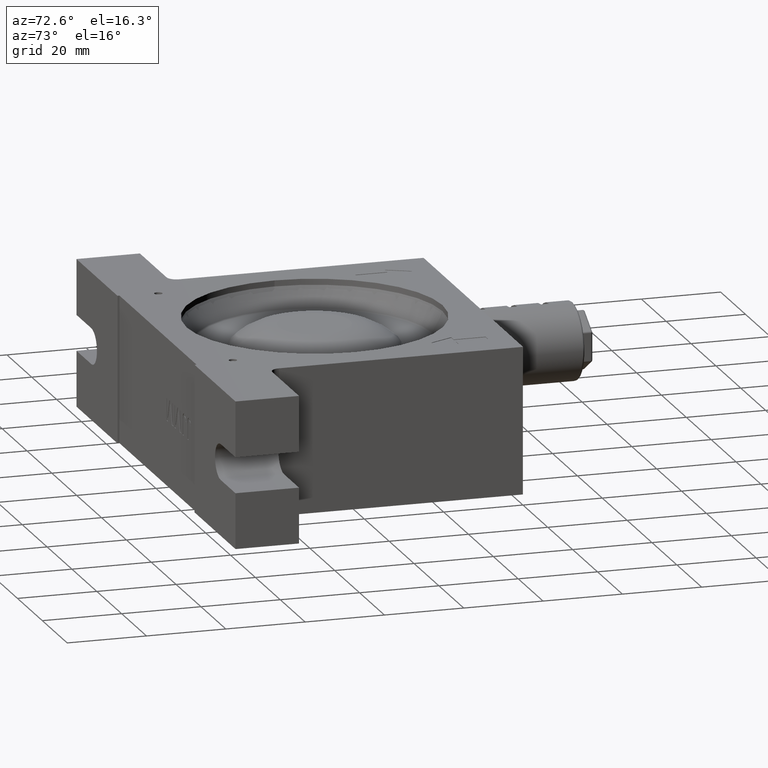
[diagram: clean part render]
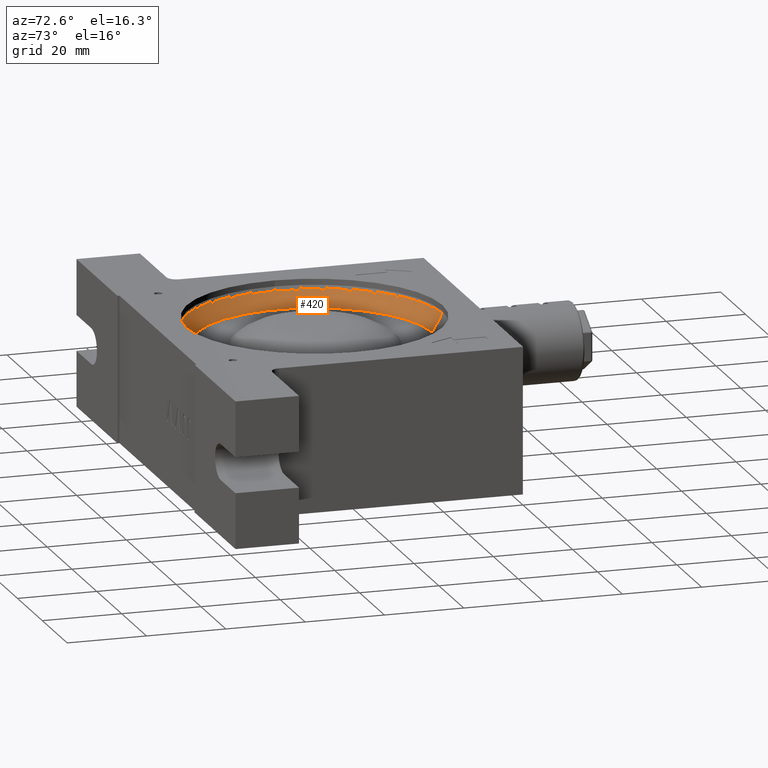
[diagram: same view with one face highlighted and labeled with its STEP entity id]
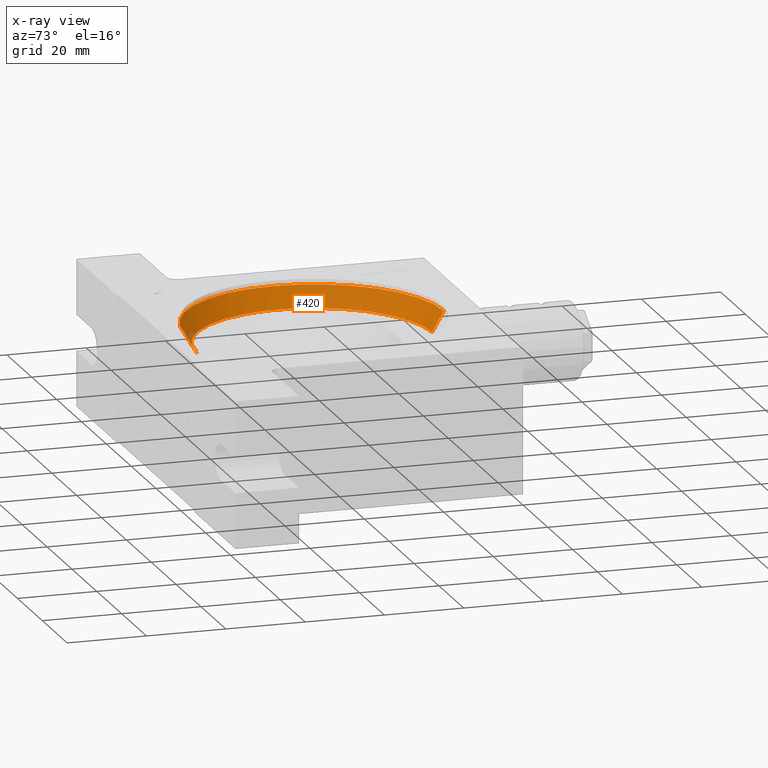
[diagram: x-ray of the same camera — body ghosted, the highlighted face saturated]
A machine part, auxiliary view. The second image highlights one B-rep face of the part: STEP entity #420.
The next image is the same camera in x-ray: the body ghosted, the highlighted face saturated — about 1% of this face is hidden behind the body in this view.
In plain terms, the highlighted conical surface has half-angle 30 deg.
Its self-contained STEP definition (entity closure, byte-faithful):
#92 = DIRECTION ( 'NONE',  ( 9.071690638293561100E-017, 0.4999999999999996100, 0.8660254037844389300 ) ) ;
#330 = VECTOR ( 'NONE', #3072, 1000.000000000000000 ) ;
#420 = ADVANCED_FACE ( 'NONE', ( #4239 ), #4324, .F. ) ;
#736 = CARTESIAN_POINT ( 'NONE',  ( -3.828213212977525200E-017, -5.449498274509549800E-016, 11.90000000000000000 ) ) ;
#805 = CARTESIAN_POINT ( 'NONE',  ( -8.566396483472342000E-015, -29.50179491924310000, 11.65000000000000400 ) ) ;
#1237 = CARTESIAN_POINT ( 'NONE',  ( 4.872602984356873100E-015, 29.50179491924310000, 11.64999999999999700 ) ) ;
#1472 = CARTESIAN_POINT ( 'NONE',  ( -4.043281371009969600E-017, -5.755649862965150000E-016, 11.65000000000000000 ) ) ;
#1951 = DIRECTION ( 'NONE',  ( 1.665334536937734800E-016, 1.000000000000000000, -1.064553872671284000E-016 ) ) ;
#1989 = CARTESIAN_POINT ( 'NONE',  ( 5.591772108843610700E-018, 7.959941299845729000E-017, 17.00000000000000000 ) ) ;
#2014 = DIRECTION ( 'NONE',  ( 8.602726321297810600E-018, 1.224606353822375800E-016, 1.000000000000000000 ) ) ;
#2448 = DIRECTION ( 'NONE',  ( 1.665334536937735100E-016, 1.000000000000000000, -1.170286530132981600E-016 ) ) ;
#2461 = EDGE_CURVE ( 'NONE', #7118, #6048, #5087, .T. ) ;
#2579 = LINE ( 'NONE', #1237, #5453 ) ;
#2817 = CARTESIAN_POINT ( 'NONE',  ( -9.413036251406219000E-015, -32.59061885940759900, 17.00000000000000400 ) ) ;
#3072 = DIRECTION ( 'NONE',  ( -1.370488872682053100E-016, -0.4999999999999993300, 0.8660254037844390400 ) ) ;
#3256 = DIRECTION ( 'NONE',  ( 8.602726321297810600E-018, 1.224606353822375800E-016, 1.000000000000000000 ) ) ;
#3632 = DIRECTION ( 'NONE',  ( 1.665334536937734800E-016, 1.000000000000000000, -1.176012158396031100E-016 ) ) ;
#4239 = FACE_OUTER_BOUND ( 'NONE', #7429, .T. ) ;
#4311 = AXIS2_PLACEMENT_3D ( 'NONE', #736, #5881, #2448 ) ;
#4324 = CONICAL_SURFACE ( 'NONE', #5189, 29.50179491924310000, 0.5235987755982982600 ) ;
#4374 = ORIENTED_EDGE ( 'NONE', *, *, #5831, .F. ) ;
#4519 = CARTESIAN_POINT ( 'NONE',  ( -9.009497670428390700E-015, -29.64613248654050200, 11.90000000000000400 ) ) ;
#4707 = ORIENTED_EDGE ( 'NONE', *, *, #6547, .T. ) ;
#4738 = AXIS2_PLACEMENT_3D ( 'NONE', #1989, #2014, #1951 ) ;
#4900 = LINE ( 'NONE', #805, #330 ) ;
#4922 = CIRCLE ( 'NONE', #4738, 32.59061885940759900 ) ;
#4956 = CARTESIAN_POINT ( 'NONE',  ( 5.433020088783418800E-015, 32.59061885940759900, 16.99999999999999600 ) ) ;
#5087 = CIRCLE ( 'NONE', #4311, 29.64613248654050200 ) ;
#5097 = EDGE_CURVE ( 'NONE', #6048, #5925, #2579, .T. ) ;
#5189 = AXIS2_PLACEMENT_3D ( 'NONE', #1472, #3256, #3632 ) ;
#5453 = VECTOR ( 'NONE', #92, 999.9999999999998900 ) ;
#5504 = CARTESIAN_POINT ( 'NONE',  ( 4.898790699516991500E-015, 29.64613248654050200, 11.89999999999999700 ) ) ;
#5761 = ORIENTED_EDGE ( 'NONE', *, *, #2461, .T. ) ;
#5831 = EDGE_CURVE ( 'NONE', #7118, #6143, #4900, .T. ) ;
#5881 = DIRECTION ( 'NONE',  ( -8.602726321297810600E-018, -1.224606353822375800E-016, -1.000000000000000000 ) ) ;
#5925 = VERTEX_POINT ( 'NONE', #4956 ) ;
#6048 = VERTEX_POINT ( 'NONE', #5504 ) ;
#6122 = ORIENTED_EDGE ( 'NONE', *, *, #5097, .T. ) ;
#6143 = VERTEX_POINT ( 'NONE', #2817 ) ;
#6547 = EDGE_CURVE ( 'NONE', #5925, #6143, #4922, .T. ) ;
#7118 = VERTEX_POINT ( 'NONE', #4519 ) ;
#7429 = EDGE_LOOP ( 'NONE', ( #4374, #5761, #6122, #4707 ) ) ;